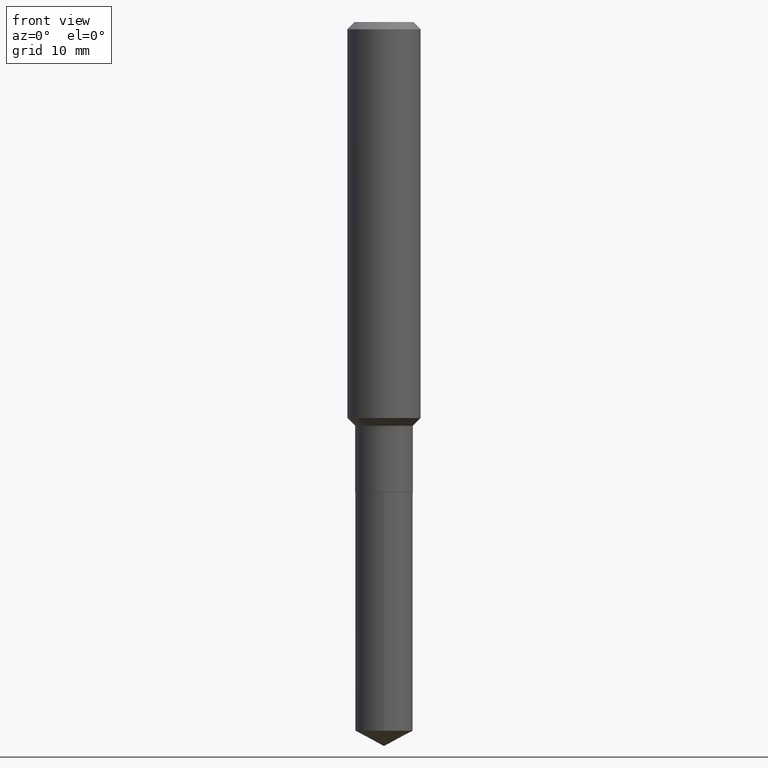
[diagram: clean part render]
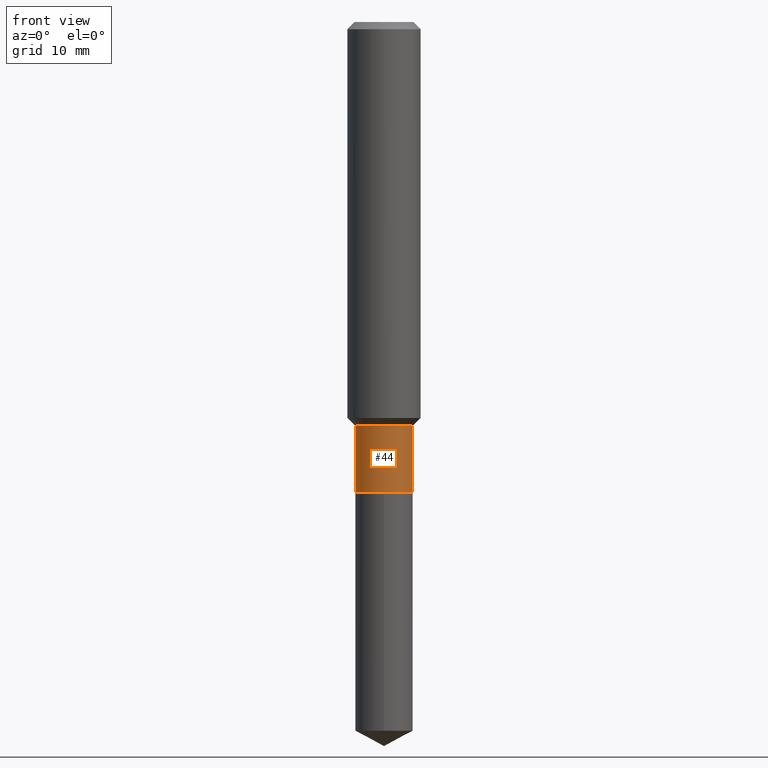
[diagram: same view with one face highlighted and labeled with its STEP entity id]
A machine part, front view. The second image highlights one B-rep face of the part: STEP entity #44.
In plain terms, the highlighted cylindrical surface (edge-blend (fillet) strip) has radius 3.1496 mm, axis along (-0, 0, 1).
Its self-contained STEP definition (entity closure, byte-faithful):
#5 = CARTESIAN_POINT ( 'NONE',  ( 4.937646066568409466E-29, -7.049649971258195757E-15, -2.019099999999999895 ) ) ;
#13 = DIRECTION ( 'NONE',  ( -2.445468806185136597E-29, 3.491481338843145583E-15, 1.000000000000000000 ) ) ;
#21 = CARTESIAN_POINT ( 'NONE',  ( -0.1239999999999999991, 8.810729923425242242E-16, -6.099479511916082446E-30 ) ) ;
#33 = VECTOR ( 'NONE', #94, 39.37007874015748143 ) ;
#44 = ADVANCED_FACE ( 'NONE', ( #268 ), #310, .T. ) ;
#66 = LINE ( 'NONE', #224, #33 ) ;
#87 = ORIENTED_EDGE ( 'NONE', *, *, #151, .T. ) ;
#94 = DIRECTION ( 'NONE',  ( -2.445468806185136877E-29, 3.491481338843145188E-15, 1.000000000000000000 ) ) ;
#148 = VERTEX_POINT ( 'NONE', #193 ) ;
#151 = EDGE_CURVE ( 'NONE', #373, #235, #157, .T. ) ;
#155 = DIRECTION ( 'NONE',  ( -2.445468806185136597E-29, 3.491481338843145583E-15, 1.000000000000000000 ) ) ;
#157 = CIRCLE ( 'NONE', #190, 0.1240000000000000130 ) ;
#161 = ORIENTED_EDGE ( 'NONE', *, *, #173, .T. ) ;
#166 = CARTESIAN_POINT ( 'NONE',  ( -0.1239999999999999575, -5.671564610331350140E-15, -1.734400000000000164 ) ) ;
#173 = EDGE_CURVE ( 'NONE', #235, #148, #66, .T. ) ;
#190 = AXIS2_PLACEMENT_3D ( 'NONE', #5, #155, #466 ) ;
#191 = AXIS2_PLACEMENT_3D ( 'NONE', #311, #468, #234 ) ;
#193 = CARTESIAN_POINT ( 'NONE',  ( 0.1239999999999999575, -6.921512606122648718E-15, -1.734400000000000164 ) ) ;
#224 = CARTESIAN_POINT ( 'NONE',  ( 0.1239999999999999991, -8.658873720330970287E-16, 6.046459201986959935E-30 ) ) ;
#234 = DIRECTION ( 'NONE',  ( 1.000000000000000000, -6.982962677686265133E-15, 0.000000000000000000 ) ) ;
#235 = VERTEX_POINT ( 'NONE', #242 ) ;
#242 = CARTESIAN_POINT ( 'NONE',  ( 0.1240000000000000130, -7.915537343291293082E-15, -2.019099999999999895 ) ) ;
#252 = EDGE_CURVE ( 'NONE', #373, #377, #381, .T. ) ;
#268 = FACE_OUTER_BOUND ( 'NONE', #451, .T. ) ;
#273 = DIRECTION ( 'NONE',  ( -2.445468806185136877E-29, 3.491481338843145188E-15, 1.000000000000000000 ) ) ;
#275 = CARTESIAN_POINT ( 'NONE',  ( 0.000000000000000000, 0.000000000000000000, 0.000000000000000000 ) ) ;
#295 = VECTOR ( 'NONE', #273, 39.37007874015748143 ) ;
#310 = CYLINDRICAL_SURFACE ( 'NONE', #343, 0.1239999999999999991 ) ;
#311 = CARTESIAN_POINT ( 'NONE',  ( 4.241421097447501822E-29, -6.055625234089552182E-15, -1.734400000000000164 ) ) ;
#325 = ORIENTED_EDGE ( 'NONE', *, *, #252, .F. ) ;
#343 = AXIS2_PLACEMENT_3D ( 'NONE', #275, #13, #477 ) ;
#350 = EDGE_CURVE ( 'NONE', #377, #148, #385, .T. ) ;
#373 = VERTEX_POINT ( 'NONE', #379 ) ;
#377 = VERTEX_POINT ( 'NONE', #166 ) ;
#379 = CARTESIAN_POINT ( 'NONE',  ( -0.1240000000000000269, -5.671564610331350140E-15, -2.019099999999999895 ) ) ;
#381 = LINE ( 'NONE', #21, #295 ) ;
#385 = CIRCLE ( 'NONE', #191, 0.1239999999999999575 ) ;
#396 = ORIENTED_EDGE ( 'NONE', *, *, #350, .F. ) ;
#451 = EDGE_LOOP ( 'NONE', ( #325, #87, #161, #396 ) ) ;
#466 = DIRECTION ( 'NONE',  ( 1.000000000000000000, -6.982962677686269866E-15, 0.000000000000000000 ) ) ;
#468 = DIRECTION ( 'NONE',  ( -2.445468806185136597E-29, 3.491481338843145583E-15, 1.000000000000000000 ) ) ;
#477 = DIRECTION ( 'NONE',  ( 1.000000000000000000, -6.982962677686266711E-15, 4.876176775795935232E-29 ) ) ;